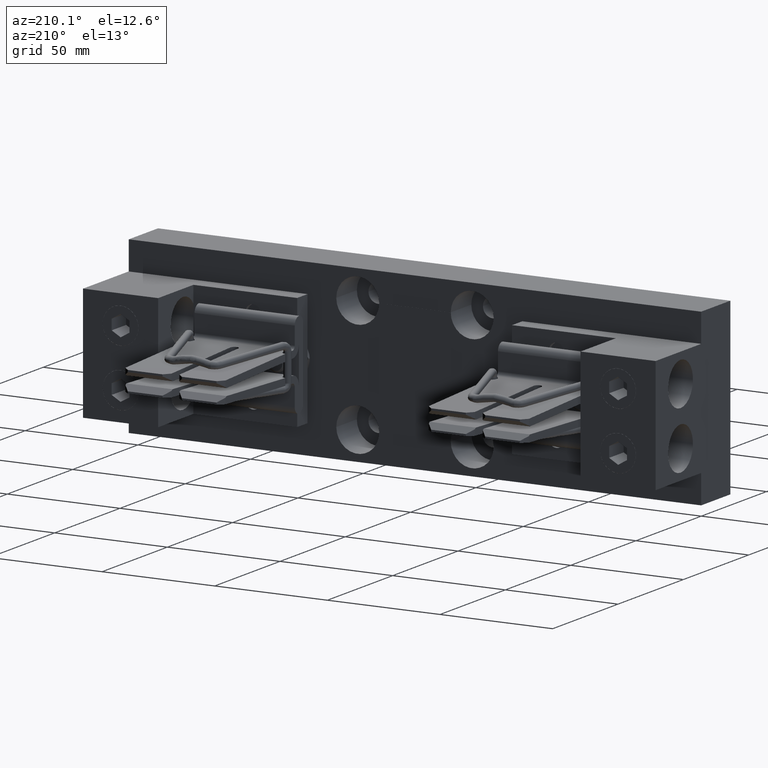
[diagram: clean part render]
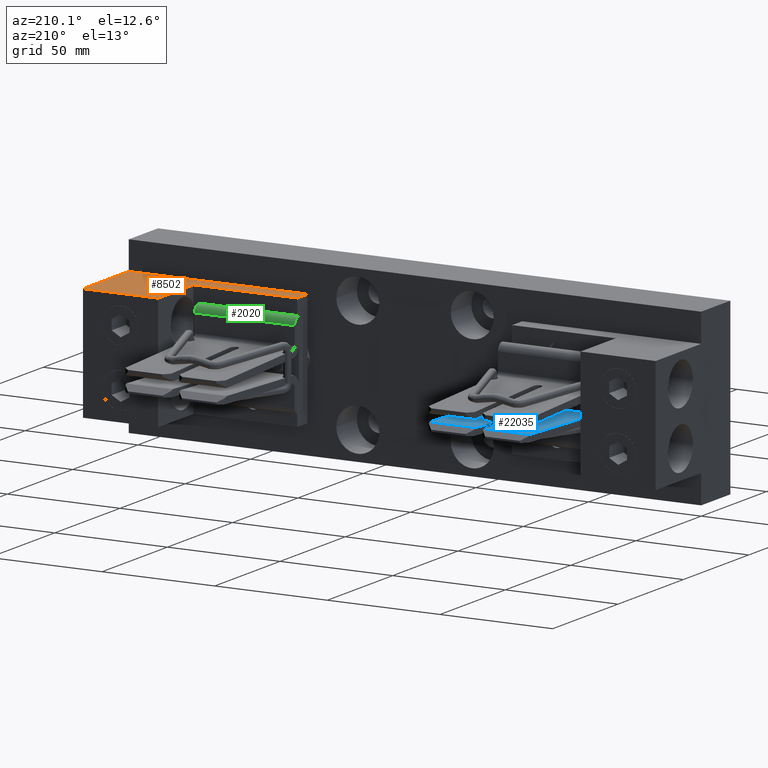
[diagram: same view with three faces highlighted in distinct colors, each labeled with its STEP entity id]
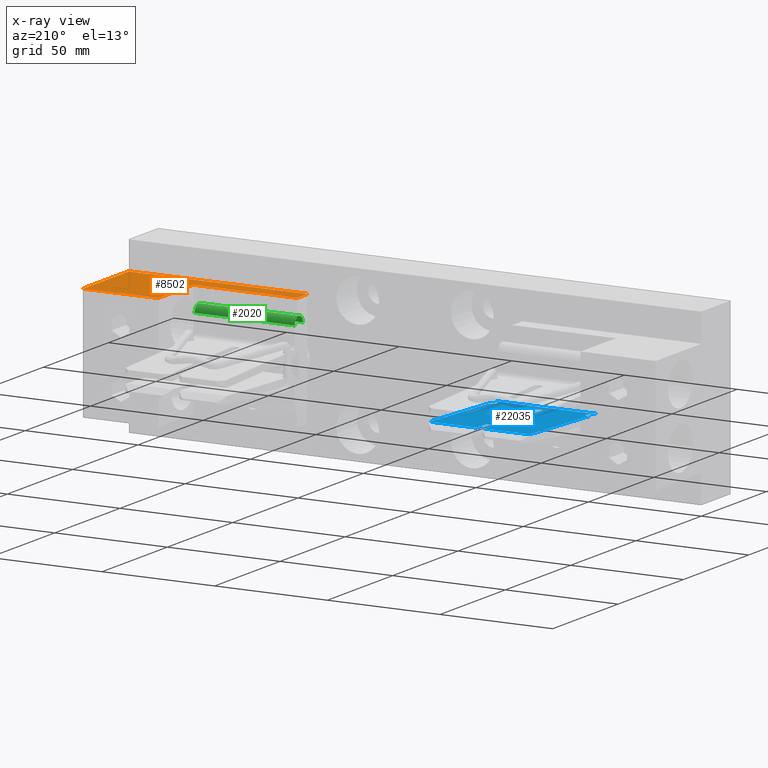
[diagram: x-ray of the same camera — body ghosted, the three highlighted faces saturated]
A machine part, auxiliary view with three faces highlighted in distinct colors.
The next image is the same camera in x-ray (body ghosted, the three faces saturated) — at least one of them is partly hidden behind the body in this view.
Their STEP definitions:

[orange] entity #8502 — the highlighted planar face has unit normal (-0, 0, -1).
#332 = CARTESIAN_POINT ( 'NONE',  ( 10.00400000000000000, 0.0000000000000000000, 0.9999981637828977400 ) ) ;
#1646 = CARTESIAN_POINT ( 'NONE',  ( 10.00400000000000000, 0.0000000000000000000, 0.9999981637828977400 ) ) ;
#2261 = EDGE_CURVE ( 'NONE', #11525, #11317, #10849, .T. ) ;
#2460 = VECTOR ( 'NONE', #16999, 39.37007874015748100 ) ;
#3521 = DIRECTION ( 'NONE',  ( -1.000000000000000000, 0.0000000000000000000, 4.783087833768358200E-017 ) ) ;
#3748 = CARTESIAN_POINT ( 'NONE',  ( 6.878999999999999600, 0.0000000000000000000, 0.9999981637828979600 ) ) ;
#4123 = CARTESIAN_POINT ( 'NONE',  ( 8.692000000000000200, 1.375000000000000200, 0.9999981637828977400 ) ) ;
#4178 = CARTESIAN_POINT ( 'NONE',  ( 8.692000000000000200, 0.3119999999999998300, 0.9999981637828977400 ) ) ;
#4962 = EDGE_CURVE ( 'NONE', #11317, #20778, #16359, .T. ) ;
#5351 = EDGE_CURVE ( 'NONE', #13224, #11525, #21801, .T. ) ;
#5737 = EDGE_CURVE ( 'NONE', #17039, #23372, #14149, .T. ) ;
#5749 = CARTESIAN_POINT ( 'NONE',  ( 6.878999999999999600, 0.3120000000000000600, 0.9999981637828979600 ) ) ;
#6773 = DIRECTION ( 'NONE',  ( 0.0000000000000000000, 1.000000000000000000, 0.0000000000000000000 ) ) ;
#7037 = ORIENTED_EDGE ( 'NONE', *, *, #2261, .F. ) ;
#7115 = EDGE_LOOP ( 'NONE', ( #18085, #16460, #14225, #12905, #10495, #7037 ) ) ;
#7155 = CARTESIAN_POINT ( 'NONE',  ( 10.00400000000000000, 0.0000000000000000000, 0.9999981637828977400 ) ) ;
#7688 = EDGE_CURVE ( 'NONE', #20778, #17039, #10024, .T. ) ;
#8502 = ADVANCED_FACE ( 'NONE', ( #9535 ), #18439, .F. ) ;
#9535 = FACE_OUTER_BOUND ( 'NONE', #7115, .T. ) ;
#9662 = VECTOR ( 'NONE', #22925, 39.37007874015748100 ) ;
#9761 = VECTOR ( 'NONE', #6773, 39.37007874015748100 ) ;
#9775 = LINE ( 'NONE', #4123, #9662 ) ;
#10024 = LINE ( 'NONE', #5749, #2460 ) ;
#10495 = ORIENTED_EDGE ( 'NONE', *, *, #4962, .F. ) ;
#10565 = EDGE_CURVE ( 'NONE', #23372, #13224, #9775, .T. ) ;
#10849 = LINE ( 'NONE', #7155, #21681 ) ;
#10954 = AXIS2_PLACEMENT_3D ( 'NONE', #1646, #14707, #3521 ) ;
#11317 = VERTEX_POINT ( 'NONE', #18304 ) ;
#11525 = VERTEX_POINT ( 'NONE', #332 ) ;
#12905 = ORIENTED_EDGE ( 'NONE', *, *, #7688, .F. ) ;
#13224 = VERTEX_POINT ( 'NONE', #16771 ) ;
#13466 = CARTESIAN_POINT ( 'NONE',  ( 10.00400000000000000, 1.375000000000000000, 0.9999981637828977400 ) ) ;
#14149 = LINE ( 'NONE', #14202, #9761 ) ;
#14202 = CARTESIAN_POINT ( 'NONE',  ( 8.692000000000000200, 0.3119999999999998300, 0.9999981637828977400 ) ) ;
#14225 = ORIENTED_EDGE ( 'NONE', *, *, #5737, .F. ) ;
#14593 = DIRECTION ( 'NONE',  ( -1.000000000000000000, 0.0000000000000000000, 4.783087833768358200E-017 ) ) ;
#14707 = DIRECTION ( 'NONE',  ( -4.783087833768358200E-017, 0.0000000000000000000, -1.000000000000000000 ) ) ;
#16309 = VECTOR ( 'NONE', #18755, 39.37007874015748100 ) ;
#16359 = LINE ( 'NONE', #3748, #16309 ) ;
#16460 = ORIENTED_EDGE ( 'NONE', *, *, #10565, .F. ) ;
#16771 = CARTESIAN_POINT ( 'NONE',  ( 10.00400000000000000, 1.375000000000000000, 0.9999981637828977400 ) ) ;
#16999 = DIRECTION ( 'NONE',  ( 1.000000000000000000, -1.130108105487147000E-016, -4.783087833768358200E-017 ) ) ;
#17039 = VERTEX_POINT ( 'NONE', #4178 ) ;
#18085 = ORIENTED_EDGE ( 'NONE', *, *, #5351, .F. ) ;
#18304 = CARTESIAN_POINT ( 'NONE',  ( 6.878999999999999600, 0.0000000000000000000, 0.9999981637828979600 ) ) ;
#18439 = PLANE ( 'NONE',  #10954 ) ;
#18583 = VECTOR ( 'NONE', #21075, 39.37007874015748100 ) ;
#18755 = DIRECTION ( 'NONE',  ( 0.0000000000000000000, 1.000000000000000000, 0.0000000000000000000 ) ) ;
#20778 = VERTEX_POINT ( 'NONE', #20964 ) ;
#20964 = CARTESIAN_POINT ( 'NONE',  ( 6.878999999999999600, 0.3120000000000000600, 0.9999981637828979600 ) ) ;
#21075 = DIRECTION ( 'NONE',  ( -4.959919040117767100E-017, -1.000000000000000000, 2.372372841726332200E-033 ) ) ;
#21681 = VECTOR ( 'NONE', #14593, 39.37007874015748100 ) ;
#21722 = CARTESIAN_POINT ( 'NONE',  ( 8.692000000000000200, 1.375000000000000200, 0.9999981637828977400 ) ) ;
#21801 = LINE ( 'NONE', #13466, #18583 ) ;
#22925 = DIRECTION ( 'NONE',  ( 1.000000000000000000, -2.082201214683127100E-016, -4.783087833768358200E-017 ) ) ;
#23372 = VERTEX_POINT ( 'NONE', #21722 ) ;

[blue] entity #22035 — the highlighted planar face has unit normal (0, 0.0353, -0.9994).
#90 = ORIENTED_EDGE ( 'NONE', *, *, #18938, .T. ) ;
#495 = CARTESIAN_POINT ( 'NONE',  ( 2.283000000000000800, 0.7400000000000005500, -0.1288231643839666500 ) ) ;
#584 = LINE ( 'NONE', #8770, #10680 ) ;
#587 = DIRECTION ( 'NONE',  ( -1.000000000000000000, -0.0000000000000000000, -0.0000000000000000000 ) ) ;
#631 = EDGE_CURVE ( 'NONE', #12804, #5861, #1533, .T. ) ;
#803 = CARTESIAN_POINT ( 'NONE',  ( 1.477000000000000800, 2.618465742517569700, -0.06250000000000006900 ) ) ;
#1291 = CARTESIAN_POINT ( 'NONE',  ( 2.421000000000000700, 2.618465742517569700, -0.06250000000000006900 ) ) ;
#1483 = EDGE_CURVE ( 'NONE', #7795, #18256, #2260, .T. ) ;
#1517 = PLANE ( 'NONE',  #18824 ) ;
#1533 = LINE ( 'NONE', #2398, #6315 ) ;
#1595 = DIRECTION ( 'NONE',  ( 0.0000000000000000000, 0.03528510665364337900, -0.9993772867383173800 ) ) ;
#1712 = ORIENTED_EDGE ( 'NONE', *, *, #20249, .T. ) ;
#1868 = ORIENTED_EDGE ( 'NONE', *, *, #2169, .T. ) ;
#1993 = CARTESIAN_POINT ( 'NONE',  ( 2.421000000000000700, 2.618465742517569700, -0.06250000000000006900 ) ) ;
#2169 = EDGE_CURVE ( 'NONE', #16159, #14986, #21458, .T. ) ;
#2192 = VERTEX_POINT ( 'NONE', #6906 ) ;
#2260 = LINE ( 'NONE', #23935, #13461 ) ;
#2398 = CARTESIAN_POINT ( 'NONE',  ( 3.227000000000000800, 0.6184016850557689800, -0.1331164473799347800 ) ) ;
#2497 = CARTESIAN_POINT ( 'NONE',  ( 2.283000000000000800, 0.8780000000000001100, -0.1239507855708609600 ) ) ;
#3103 = DIRECTION ( 'NONE',  ( -1.232510108407271800E-016, -0.9993772867383173800, -0.03528510665364338600 ) ) ;
#3967 = VECTOR ( 'NONE', #3103, 39.37007874015748100 ) ;
#4161 = CARTESIAN_POINT ( 'NONE',  ( 3.039000000000001500, 0.8429999999999999700, -0.1251865338205616100 ) ) ;
#4644 = CARTESIAN_POINT ( 'NONE',  ( 3.227000000000000800, 2.618465742517569700, -0.06250000000000006900 ) ) ;
#4822 = EDGE_CURVE ( 'NONE', #19647, #2192, #21131, .T. ) ;
#5015 = ORIENTED_EDGE ( 'NONE', *, *, #8786, .T. ) ;
#5208 = CARTESIAN_POINT ( 'NONE',  ( 1.477000000000000800, 0.6184016850557689800, -0.1331164473799347800 ) ) ;
#5326 = ORIENTED_EDGE ( 'NONE', *, *, #631, .F. ) ;
#5594 = EDGE_CURVE ( 'NONE', #21903, #20238, #13247, .T. ) ;
#5627 = CARTESIAN_POINT ( 'NONE',  ( 3.227000000000000800, 0.6549999999999998000, -0.1318242672760969700 ) ) ;
#5861 = VERTEX_POINT ( 'NONE', #5208 ) ;
#6044 = LINE ( 'NONE', #803, #9869 ) ;
#6285 = CARTESIAN_POINT ( 'NONE',  ( 1.477000000000000800, 0.8430000000000006400, -0.1251865338205615800 ) ) ;
#6315 = VECTOR ( 'NONE', #587, 39.37007874015748100 ) ;
#6527 = DIRECTION ( 'NONE',  ( -1.000000000000000000, -0.0000000000000000000, -0.0000000000000000000 ) ) ;
#6605 =( BOUNDED_CURVE ( )  B_SPLINE_CURVE ( 3, ( #22957, #9784, #495, #13512 ),
 .UNSPECIFIED., .F., .F. ) 
 B_SPLINE_CURVE_WITH_KNOTS ( ( 4, 4 ),
 ( 1.570796326794896800, 4.712388980384689700 ),
 .UNSPECIFIED. ) 
 CURVE ( )  GEOMETRIC_REPRESENTATION_ITEM ( )  RATIONAL_B_SPLINE_CURVE ( ( 1.000000000000000000, 0.3333333333333333700, 0.3333333333333333700, 1.000000000000000000 ) ) 
 REPRESENTATION_ITEM ( '' )  );
#6906 = CARTESIAN_POINT ( 'NONE',  ( 2.283000000000000800, 2.618465742517569700, -0.06250000000000006900 ) ) ;
#7151 = ORIENTED_EDGE ( 'NONE', *, *, #1483, .F. ) ;
#7795 = VERTEX_POINT ( 'NONE', #13496 ) ;
#7837 = CARTESIAN_POINT ( 'NONE',  ( 2.421000000000000300, 0.8780000000000001100, -0.1239507855708611300 ) ) ;
#7934 = CARTESIAN_POINT ( 'NONE',  ( 3.227000000000000800, 0.6549999999999998000, -0.1318242672760969700 ) ) ;
#8547 = CARTESIAN_POINT ( 'NONE',  ( 1.477000000000000800, 2.618465742517569700, -0.06250000000000006900 ) ) ;
#8749 = DIRECTION ( 'NONE',  ( -1.000000000000000000, -0.0000000000000000000, -0.0000000000000000000 ) ) ;
#8770 = CARTESIAN_POINT ( 'NONE',  ( 3.227000000000000800, 2.618465742517569700, -0.06250000000000006900 ) ) ;
#8786 = EDGE_CURVE ( 'NONE', #11564, #5861, #6044, .T. ) ;
#8845 = DIRECTION ( 'NONE',  ( 0.0000000000000000000, -0.9993772867383173800, -0.03528510665364337200 ) ) ;
#8925 = DIRECTION ( 'NONE',  ( 0.0000000000000000000, -0.9993772867383173800, -0.03528510665364337200 ) ) ;
#9488 = VECTOR ( 'NONE', #19580, 39.37007874015748900 ) ;
#9784 = CARTESIAN_POINT ( 'NONE',  ( 2.421000000000000700, 0.7400000000000005500, -0.1288231643839666500 ) ) ;
#9789 = CARTESIAN_POINT ( 'NONE',  ( 3.227000000000000800, 0.8430000000000006400, -0.1251865338205615800 ) ) ;
#9869 = VECTOR ( 'NONE', #21445, 39.37007874015748900 ) ;
#10044 = CARTESIAN_POINT ( 'NONE',  ( 1.665000000000000700, 0.6550000000000000300, -0.1318242672760968600 ) ) ;
#10078 = CARTESIAN_POINT ( 'NONE',  ( 3.227000000000000800, 0.8430000000000006400, -0.1251865338205615800 ) ) ;
#10266 = ORIENTED_EDGE ( 'NONE', *, *, #5594, .T. ) ;
#10680 = VECTOR ( 'NONE', #8845, 39.37007874015748900 ) ;
#11291 =( BOUNDED_CURVE ( )  B_SPLINE_CURVE ( 3, ( #7934, #15374, #4161, #9789 ),
 .UNSPECIFIED., .F., .F. ) 
 B_SPLINE_CURVE_WITH_KNOTS ( ( 4, 4 ),
 ( 3.141592653589793100, 6.283185307179586200 ),
 .UNSPECIFIED. ) 
 CURVE ( )  GEOMETRIC_REPRESENTATION_ITEM ( )  RATIONAL_B_SPLINE_CURVE ( ( 1.000000000000000000, 0.3333333333333333700, 0.3333333333333333700, 1.000000000000000000 ) ) 
 REPRESENTATION_ITEM ( '' )  );
#11564 = VERTEX_POINT ( 'NONE', #21037 ) ;
#11829 = EDGE_LOOP ( 'NONE', ( #12591, #14152, #7151, #20035, #1868, #23008, #22222, #90, #10266, #1712, #5015, #5326 ) ) ;
#12233 = EDGE_CURVE ( 'NONE', #22063, #12804, #584, .T. ) ;
#12405 = LINE ( 'NONE', #4644, #24191 ) ;
#12591 = ORIENTED_EDGE ( 'NONE', *, *, #12233, .F. ) ;
#12686 = DIRECTION ( 'NONE',  ( -1.232510108407271800E-016, 0.9993772867383173800, 0.03528510665364338600 ) ) ;
#12717 = CARTESIAN_POINT ( 'NONE',  ( 3.227000000000000800, 2.618465742517569700, -0.06250000000000006900 ) ) ;
#12804 = VERTEX_POINT ( 'NONE', #24195 ) ;
#13247 = LINE ( 'NONE', #23313, #9488 ) ;
#13461 = VECTOR ( 'NONE', #8925, 39.37007874015748900 ) ;
#13496 = CARTESIAN_POINT ( 'NONE',  ( 3.227000000000000800, 2.618465742517569700, -0.06250000000000006900 ) ) ;
#13512 = CARTESIAN_POINT ( 'NONE',  ( 2.283000000000000800, 0.8780000000000001100, -0.1239507855708609600 ) ) ;
#14152 = ORIENTED_EDGE ( 'NONE', *, *, #17366, .T. ) ;
#14656 = DIRECTION ( 'NONE',  ( 0.0000000000000000000, 0.9993772867383173800, 0.03528510665364337900 ) ) ;
#14986 = VERTEX_POINT ( 'NONE', #7837 ) ;
#15003 = EDGE_CURVE ( 'NONE', #14986, #19647, #6605, .T. ) ;
#15133 = FACE_OUTER_BOUND ( 'NONE', #11829, .T. ) ;
#15374 = CARTESIAN_POINT ( 'NONE',  ( 3.039000000000001500, 0.6550000000000000300, -0.1318242672760968600 ) ) ;
#15849 = EDGE_CURVE ( 'NONE', #7795, #16159, #12405, .T. ) ;
#16159 = VERTEX_POINT ( 'NONE', #1993 ) ;
#16617 =( BOUNDED_CURVE ( )  B_SPLINE_CURVE ( 3, ( #23141, #19425, #10044, #23228 ),
 .UNSPECIFIED., .F., .F. ) 
 B_SPLINE_CURVE_WITH_KNOTS ( ( 4, 4 ),
 ( 0.0000000000000000000, 3.141592653589793100 ),
 .UNSPECIFIED. ) 
 CURVE ( )  GEOMETRIC_REPRESENTATION_ITEM ( )  RATIONAL_B_SPLINE_CURVE ( ( 1.000000000000000000, 0.3333333333333333700, 0.3333333333333333700, 1.000000000000000000 ) ) 
 REPRESENTATION_ITEM ( '' )  );
#17366 = EDGE_CURVE ( 'NONE', #22063, #18256, #11291, .T. ) ;
#18256 = VERTEX_POINT ( 'NONE', #10078 ) ;
#18824 = AXIS2_PLACEMENT_3D ( 'NONE', #12717, #1595, #14656 ) ;
#18938 = EDGE_CURVE ( 'NONE', #2192, #21903, #23722, .T. ) ;
#19425 = CARTESIAN_POINT ( 'NONE',  ( 1.665000000000000700, 0.8429999999999999700, -0.1251865338205616100 ) ) ;
#19580 = DIRECTION ( 'NONE',  ( 0.0000000000000000000, -0.9993772867383173800, -0.03528510665364337200 ) ) ;
#19647 = VERTEX_POINT ( 'NONE', #2497 ) ;
#20035 = ORIENTED_EDGE ( 'NONE', *, *, #15849, .T. ) ;
#20238 = VERTEX_POINT ( 'NONE', #6285 ) ;
#20249 = EDGE_CURVE ( 'NONE', #20238, #11564, #16617, .T. ) ;
#20822 = VECTOR ( 'NONE', #8749, 39.37007874015748100 ) ;
#21037 = CARTESIAN_POINT ( 'NONE',  ( 1.477000000000000800, 0.6549999999999998000, -0.1318242672760969700 ) ) ;
#21131 = LINE ( 'NONE', #24125, #21318 ) ;
#21318 = VECTOR ( 'NONE', #12686, 39.37007874015748100 ) ;
#21445 = DIRECTION ( 'NONE',  ( 0.0000000000000000000, -0.9993772867383173800, -0.03528510665364337200 ) ) ;
#21458 = LINE ( 'NONE', #1291, #3967 ) ;
#21888 = CARTESIAN_POINT ( 'NONE',  ( 3.227000000000000800, 2.618465742517569700, -0.06250000000000006900 ) ) ;
#21903 = VERTEX_POINT ( 'NONE', #8547 ) ;
#22035 = ADVANCED_FACE ( 'NONE', ( #15133 ), #1517, .F. ) ;
#22063 = VERTEX_POINT ( 'NONE', #5627 ) ;
#22222 = ORIENTED_EDGE ( 'NONE', *, *, #4822, .T. ) ;
#22957 = CARTESIAN_POINT ( 'NONE',  ( 2.421000000000000300, 0.8780000000000001100, -0.1239507855708611300 ) ) ;
#23008 = ORIENTED_EDGE ( 'NONE', *, *, #15003, .T. ) ;
#23141 = CARTESIAN_POINT ( 'NONE',  ( 1.477000000000000800, 0.8430000000000006400, -0.1251865338205615800 ) ) ;
#23228 = CARTESIAN_POINT ( 'NONE',  ( 1.477000000000000800, 0.6549999999999998000, -0.1318242672760969700 ) ) ;
#23313 = CARTESIAN_POINT ( 'NONE',  ( 1.477000000000000800, 2.618465742517569700, -0.06250000000000006900 ) ) ;
#23722 = LINE ( 'NONE', #21888, #20822 ) ;
#23935 = CARTESIAN_POINT ( 'NONE',  ( 3.227000000000000800, 2.618465742517569700, -0.06250000000000006900 ) ) ;
#24125 = CARTESIAN_POINT ( 'NONE',  ( 2.283000000000000800, 2.618465742517569700, -0.06250000000000006900 ) ) ;
#24191 = VECTOR ( 'NONE', #6527, 39.37007874015748100 ) ;
#24195 = CARTESIAN_POINT ( 'NONE',  ( 3.227000000000000800, 0.6184016850557689800, -0.1331164473799347800 ) ) ;

[green] entity #2020 — the highlighted cylindrical surface (edge-blend (fillet) strip) has radius 3.175 mm, axis along (-1, -0, -0).
#877 = AXIS2_PLACEMENT_3D ( 'NONE', #15170, #3968, #17065 ) ;
#2020 = ADVANCED_FACE ( 'NONE', ( #6451 ), #4972, .T. ) ;
#2432 = DIRECTION ( 'NONE',  ( 1.000000000000000000, 0.0000000000000000000, -0.0000000000000000000 ) ) ;
#3263 = AXIS2_PLACEMENT_3D ( 'NONE', #13555, #2432, #15496 ) ;
#3300 = CARTESIAN_POINT ( 'NONE',  ( 8.527005058569839600, 0.3120000000000001100, 0.6314999999999999500 ) ) ;
#3766 = ORIENTED_EDGE ( 'NONE', *, *, #19932, .F. ) ;
#3968 = DIRECTION ( 'NONE',  ( 1.000000000000000000, 0.0000000000000000000, -0.0000000000000000000 ) ) ;
#4090 = ORIENTED_EDGE ( 'NONE', *, *, #6364, .T. ) ;
#4855 = VECTOR ( 'NONE', #20050, 39.37007874015748100 ) ;
#4972 = CYLINDRICAL_SURFACE ( 'NONE', #18958, 0.1250000000000000300 ) ;
#6364 = EDGE_CURVE ( 'NONE', #10129, #15555, #9872, .T. ) ;
#6451 = FACE_OUTER_BOUND ( 'NONE', #15309, .T. ) ;
#6836 = CARTESIAN_POINT ( 'NONE',  ( 8.527005058569839600, 0.5620000000000002800, 0.6314999999999999500 ) ) ;
#7228 = LINE ( 'NONE', #6836, #4855 ) ;
#7678 = DIRECTION ( 'NONE',  ( -1.000000000000000000, -0.0000000000000000000, -0.0000000000000000000 ) ) ;
#8094 = VERTEX_POINT ( 'NONE', #16180 ) ;
#9414 = VECTOR ( 'NONE', #10621, 39.37007874015748100 ) ;
#9700 = CARTESIAN_POINT ( 'NONE',  ( 6.777005058569839600, 0.5620000000000002800, 0.6314999999999999500 ) ) ;
#9872 = CIRCLE ( 'NONE', #3263, 0.1250000000000000300 ) ;
#10129 = VERTEX_POINT ( 'NONE', #9700 ) ;
#10621 = DIRECTION ( 'NONE',  ( -1.000000000000000000, -0.0000000000000000000, -0.0000000000000000000 ) ) ;
#11302 = VERTEX_POINT ( 'NONE', #3300 ) ;
#11947 = CIRCLE ( 'NONE', #877, 0.1250000000000000300 ) ;
#12571 = CARTESIAN_POINT ( 'NONE',  ( 8.527005058569839600, 0.3120000000000001100, 0.6314999999999999500 ) ) ;
#13240 = ORIENTED_EDGE ( 'NONE', *, *, #16521, .T. ) ;
#13555 = CARTESIAN_POINT ( 'NONE',  ( 6.777005058569839600, 0.4370000000000002800, 0.6314999999999999500 ) ) ;
#15170 = CARTESIAN_POINT ( 'NONE',  ( 8.527005058569839600, 0.4370000000000002800, 0.6314999999999999500 ) ) ;
#15309 = EDGE_LOOP ( 'NONE', ( #4090, #3766, #23642, #13240 ) ) ;
#15334 = LINE ( 'NONE', #12571, #9414 ) ;
#15483 = EDGE_CURVE ( 'NONE', #8094, #11302, #11947, .T. ) ;
#15496 = DIRECTION ( 'NONE',  ( 0.0000000000000000000, 0.0000000000000000000, 1.000000000000000000 ) ) ;
#15548 = DIRECTION ( 'NONE',  ( 0.0000000000000000000, 0.0000000000000000000, 1.000000000000000000 ) ) ;
#15555 = VERTEX_POINT ( 'NONE', #24310 ) ;
#16180 = CARTESIAN_POINT ( 'NONE',  ( 8.527005058569839600, 0.5620000000000002800, 0.6314999999999999500 ) ) ;
#16521 = EDGE_CURVE ( 'NONE', #8094, #10129, #7228, .T. ) ;
#17065 = DIRECTION ( 'NONE',  ( 0.0000000000000000000, 0.0000000000000000000, 1.000000000000000000 ) ) ;
#17360 = CARTESIAN_POINT ( 'NONE',  ( 8.527005058569839600, 0.4370000000000002800, 0.6314999999999999500 ) ) ;
#18958 = AXIS2_PLACEMENT_3D ( 'NONE', #17360, #7678, #15548 ) ;
#19932 = EDGE_CURVE ( 'NONE', #11302, #15555, #15334, .T. ) ;
#20050 = DIRECTION ( 'NONE',  ( -1.000000000000000000, -0.0000000000000000000, -0.0000000000000000000 ) ) ;
#23642 = ORIENTED_EDGE ( 'NONE', *, *, #15483, .F. ) ;
#24310 = CARTESIAN_POINT ( 'NONE',  ( 6.777005058569839600, 0.3120000000000001100, 0.6314999999999999500 ) ) ;